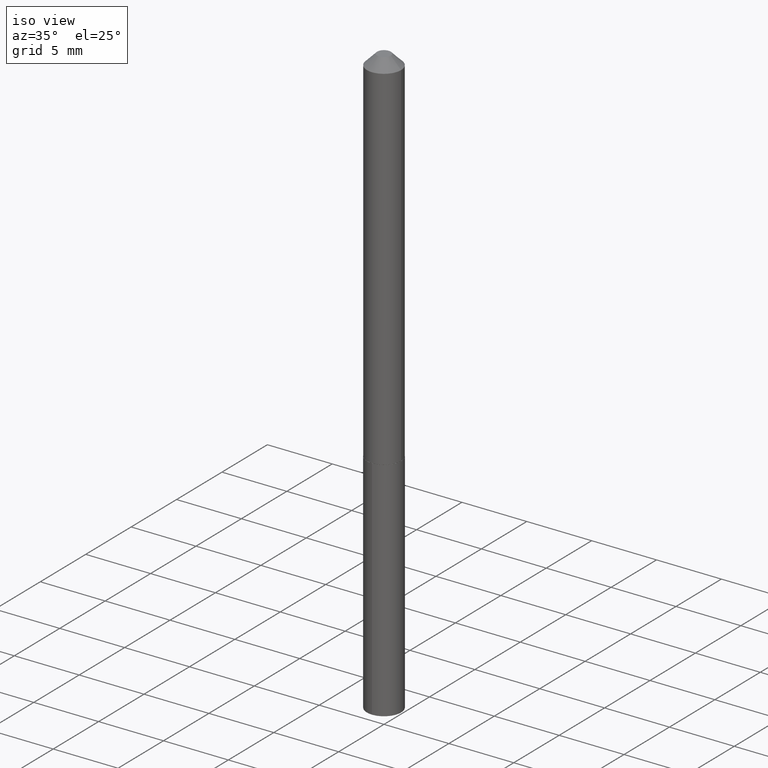
[diagram: clean part render]
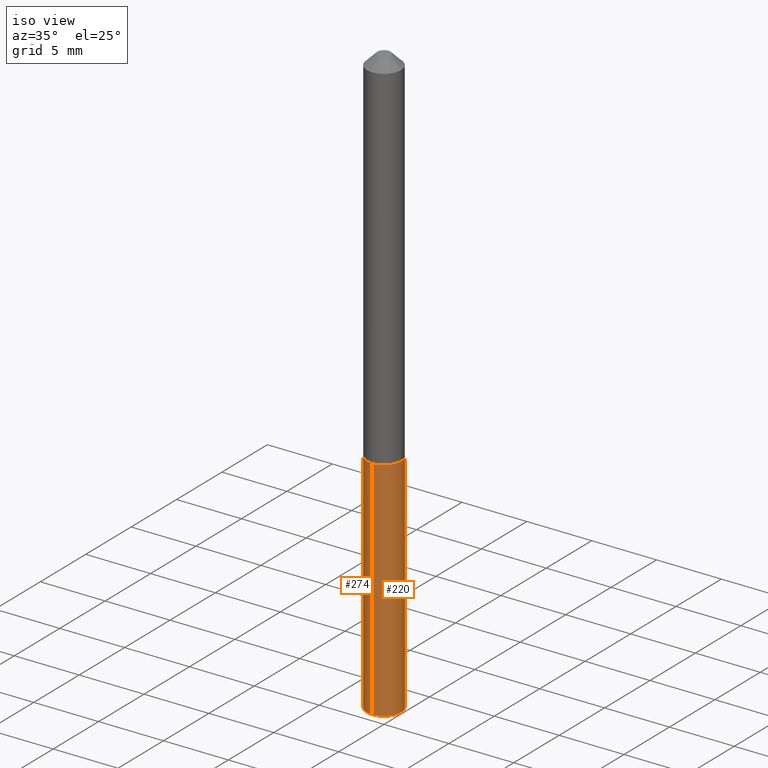
[diagram: same view with one multi-face feature highlighted, each face labeled with its STEP entity id]
A machine part, iso view. The highlighted faces form ONE feature: a constant-radius fillet chain: 2 tangent blend faces with common blend radius 1.3208 mm. The faces share edges in the B-rep.
Their STEP definitions:
[1] entity #220 (Cylinder):
#9 = DIRECTION ( 'NONE',  ( -6.982962677686266711E-15, -1.000000000000000000, 2.626776916984868919E-15 ) ) ;
#12 = EDGE_LOOP ( 'NONE', ( #175, #101, #260, #310 ) ) ;
#20 = AXIS2_PLACEMENT_3D ( 'NONE', #194, #339, #9 ) ;
#33 = EDGE_CURVE ( 'NONE', #372, #370, #158, .T. ) ;
#51 = VECTOR ( 'NONE', #206, 39.37007874015748143 ) ;
#62 = CARTESIAN_POINT ( 'NONE',  ( 2.699797562028391099E-29, -3.854595398082833708E-15, -1.104000000000000092 ) ) ;
#63 = CARTESIAN_POINT ( 'NONE',  ( 4.386127677929786154E-29, -6.262229266394509783E-15, -1.793573547818158032 ) ) ;
#79 = CARTESIAN_POINT ( 'NONE',  ( 3.694822225952789996E-16, 0.05199999999999613265, -1.104000000000000314 ) ) ;
#91 = EDGE_CURVE ( 'NONE', #372, #287, #224, .T. ) ;
#101 = ORIENTED_EDGE ( 'NONE', *, *, #382, .T. ) ;
#104 = CARTESIAN_POINT ( 'NONE',  ( 3.694822225952959601E-16, 0.05199999999999374567, -1.793573547818158254 ) ) ;
#110 = CARTESIAN_POINT ( 'NONE',  ( 3.694822225952959601E-16, 0.05199999999999613265, -1.104000000000000314 ) ) ;
#121 = CARTESIAN_POINT ( 'NONE',  ( -3.631140592396587893E-16, -0.05200000000000384870, -1.104000000000000092 ) ) ;
#158 = LINE ( 'NONE', #121, #51 ) ;
#159 = DIRECTION ( 'NONE',  ( -6.982962677686266711E-15, -1.000000000000000000, 5.253553833969737838E-15 ) ) ;
#160 = VECTOR ( 'NONE', #321, 39.37007874015748143 ) ;
#166 = AXIS2_PLACEMENT_3D ( 'NONE', #63, #330, #159 ) ;
#172 = EDGE_CURVE ( 'NONE', #370, #348, #328, .T. ) ;
#175 = ORIENTED_EDGE ( 'NONE', *, *, #91, .T. ) ;
#192 = DIRECTION ( 'NONE',  ( -2.445468103057347126E-29, 3.491482345762159600E-15, 1.000000000000000000 ) ) ;
#194 = CARTESIAN_POINT ( 'NONE',  ( 2.699797562028391099E-29, -3.854595398082833708E-15, -1.104000000000000092 ) ) ;
#196 = AXIS2_PLACEMENT_3D ( 'NONE', #62, #192, #219 ) ;
#206 = DIRECTION ( 'NONE',  ( -2.445468103057346845E-29, 3.491482345762159600E-15, 1.000000000000000000 ) ) ;
#219 = DIRECTION ( 'NONE',  ( -6.982962677686266711E-15, -1.000000000000000000, 2.626776916984868919E-15 ) ) ;
#220 = ADVANCED_FACE ( 'NONE', ( #335 ), #230, .T. ) ;
#224 = CIRCLE ( 'NONE', #166, 0.05199999999999999067 ) ;
#230 = CYLINDRICAL_SURFACE ( 'NONE', #20, 0.05199999999999999067 ) ;
#235 = LINE ( 'NONE', #79, #160 ) ;
#240 = CARTESIAN_POINT ( 'NONE',  ( -3.631140592396587893E-16, -0.05200000000000384870, -1.104000000000000092 ) ) ;
#260 = ORIENTED_EDGE ( 'NONE', *, *, #172, .F. ) ;
#287 = VERTEX_POINT ( 'NONE', #104 ) ;
#310 = ORIENTED_EDGE ( 'NONE', *, *, #33, .F. ) ;
#321 = DIRECTION ( 'NONE',  ( -2.445468103057346845E-29, 3.491482345762159600E-15, 1.000000000000000000 ) ) ;
#322 = CARTESIAN_POINT ( 'NONE',  ( -3.631140592396419767E-16, -0.05200000000000627731, -1.793573547818157587 ) ) ;
#328 = CIRCLE ( 'NONE', #196, 0.05199999999999999067 ) ;
#330 = DIRECTION ( 'NONE',  ( -2.445468103057347126E-29, 3.491482345762159600E-15, 1.000000000000000000 ) ) ;
#335 = FACE_OUTER_BOUND ( 'NONE', #12, .T. ) ;
#339 = DIRECTION ( 'NONE',  ( -2.445468103057347126E-29, 3.491482345762159600E-15, 1.000000000000000000 ) ) ;
#348 = VERTEX_POINT ( 'NONE', #110 ) ;
#370 = VERTEX_POINT ( 'NONE', #240 ) ;
#372 = VERTEX_POINT ( 'NONE', #322 ) ;
#382 = EDGE_CURVE ( 'NONE', #287, #348, #235, .T. ) ;
[2] entity #274 (Cylinder):
#29 = CARTESIAN_POINT ( 'NONE',  ( 4.386127677929786154E-29, -6.262229266394509783E-15, -1.793573547818158032 ) ) ;
#33 = EDGE_CURVE ( 'NONE', #372, #370, #158, .T. ) ;
#35 = DIRECTION ( 'NONE',  ( -2.445468103057347126E-29, 3.491482345762159600E-15, 1.000000000000000000 ) ) ;
#46 = ORIENTED_EDGE ( 'NONE', *, *, #109, .T. ) ;
#49 = ORIENTED_EDGE ( 'NONE', *, *, #33, .T. ) ;
#51 = VECTOR ( 'NONE', #206, 39.37007874015748143 ) ;
#56 = EDGE_CURVE ( 'NONE', #348, #370, #273, .T. ) ;
#79 = CARTESIAN_POINT ( 'NONE',  ( 3.694822225952789996E-16, 0.05199999999999613265, -1.104000000000000314 ) ) ;
#87 = AXIS2_PLACEMENT_3D ( 'NONE', #29, #126, #157 ) ;
#100 = CARTESIAN_POINT ( 'NONE',  ( 2.699797562028391099E-29, -3.854595398082833708E-15, -1.104000000000000092 ) ) ;
#104 = CARTESIAN_POINT ( 'NONE',  ( 3.694822225952959601E-16, 0.05199999999999374567, -1.793573547818158254 ) ) ;
#109 = EDGE_CURVE ( 'NONE', #287, #372, #261, .T. ) ;
#110 = CARTESIAN_POINT ( 'NONE',  ( 3.694822225952959601E-16, 0.05199999999999613265, -1.104000000000000314 ) ) ;
#114 = ORIENTED_EDGE ( 'NONE', *, *, #56, .F. ) ;
#121 = CARTESIAN_POINT ( 'NONE',  ( -3.631140592396587893E-16, -0.05200000000000384870, -1.104000000000000092 ) ) ;
#125 = CARTESIAN_POINT ( 'NONE',  ( 2.699797562028391099E-29, -3.854595398082833708E-15, -1.104000000000000092 ) ) ;
#126 = DIRECTION ( 'NONE',  ( -2.445468103057347126E-29, 3.491482345762159600E-15, 1.000000000000000000 ) ) ;
#129 = AXIS2_PLACEMENT_3D ( 'NONE', #125, #35, #140 ) ;
#132 = CYLINDRICAL_SURFACE ( 'NONE', #237, 0.05199999999999999067 ) ;
#140 = DIRECTION ( 'NONE',  ( -6.982962677686266711E-15, -1.000000000000000000, 2.626776916984868919E-15 ) ) ;
#157 = DIRECTION ( 'NONE',  ( -6.982962677686266711E-15, -1.000000000000000000, 5.253553833969737838E-15 ) ) ;
#158 = LINE ( 'NONE', #121, #51 ) ;
#160 = VECTOR ( 'NONE', #321, 39.37007874015748143 ) ;
#199 = EDGE_LOOP ( 'NONE', ( #282, #46, #49, #114 ) ) ;
#206 = DIRECTION ( 'NONE',  ( -2.445468103057346845E-29, 3.491482345762159600E-15, 1.000000000000000000 ) ) ;
#221 = DIRECTION ( 'NONE',  ( -2.445468103057347126E-29, 3.491482345762159600E-15, 1.000000000000000000 ) ) ;
#235 = LINE ( 'NONE', #79, #160 ) ;
#237 = AXIS2_PLACEMENT_3D ( 'NONE', #100, #221, #249 ) ;
#240 = CARTESIAN_POINT ( 'NONE',  ( -3.631140592396587893E-16, -0.05200000000000384870, -1.104000000000000092 ) ) ;
#249 = DIRECTION ( 'NONE',  ( -6.982962677686266711E-15, -1.000000000000000000, 2.626776916984868919E-15 ) ) ;
#261 = CIRCLE ( 'NONE', #87, 0.05199999999999999067 ) ;
#273 = CIRCLE ( 'NONE', #129, 0.05199999999999999067 ) ;
#274 = ADVANCED_FACE ( 'NONE', ( #367 ), #132, .T. ) ;
#282 = ORIENTED_EDGE ( 'NONE', *, *, #382, .F. ) ;
#287 = VERTEX_POINT ( 'NONE', #104 ) ;
#321 = DIRECTION ( 'NONE',  ( -2.445468103057346845E-29, 3.491482345762159600E-15, 1.000000000000000000 ) ) ;
#322 = CARTESIAN_POINT ( 'NONE',  ( -3.631140592396419767E-16, -0.05200000000000627731, -1.793573547818157587 ) ) ;
#348 = VERTEX_POINT ( 'NONE', #110 ) ;
#367 = FACE_OUTER_BOUND ( 'NONE', #199, .T. ) ;
#370 = VERTEX_POINT ( 'NONE', #240 ) ;
#372 = VERTEX_POINT ( 'NONE', #322 ) ;
#382 = EDGE_CURVE ( 'NONE', #287, #348, #235, .T. ) ;